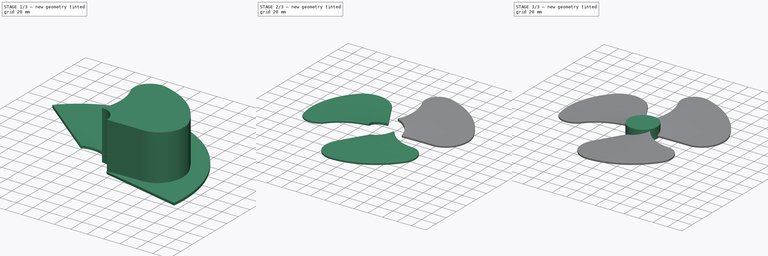
[diagram: build sequence overview — one tinted view per stage of 3, left to right]
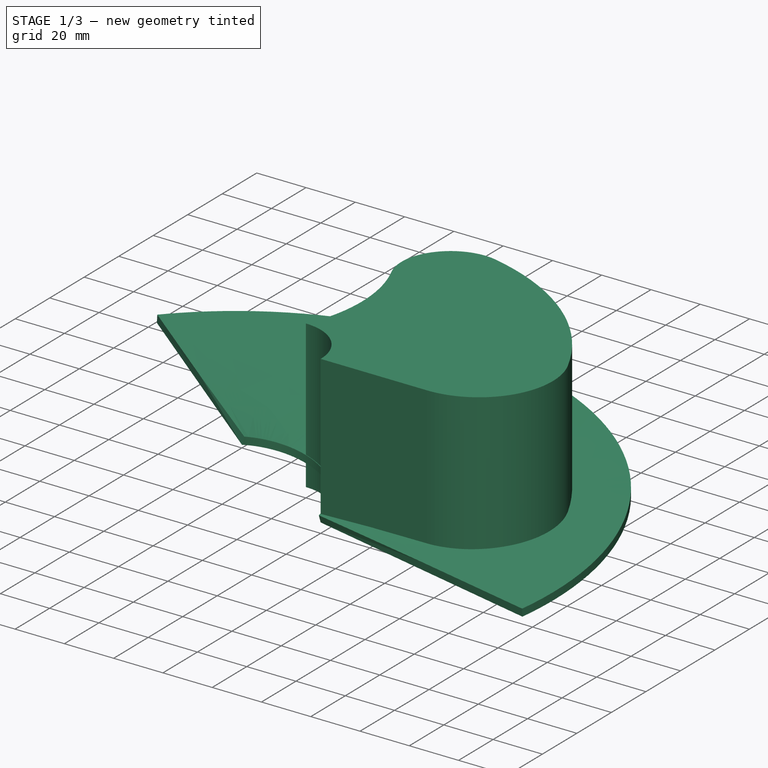
[diagram: stage 1 of 3 — iso view after this stage's code; geometry added in this stage tinted green]
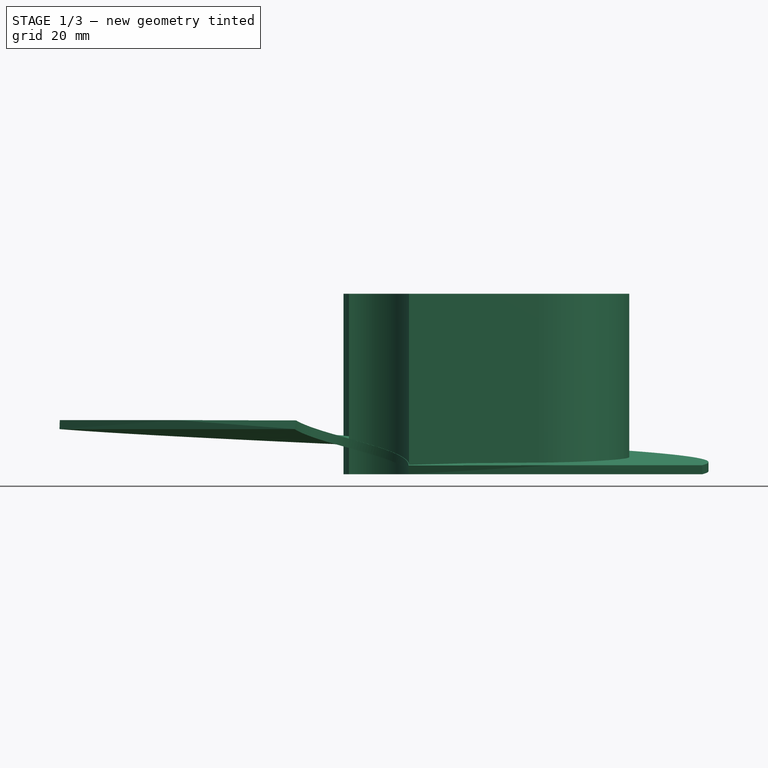
[diagram: stage 1 of 3 — front view after this stage's code; geometry added in this stage tinted green]
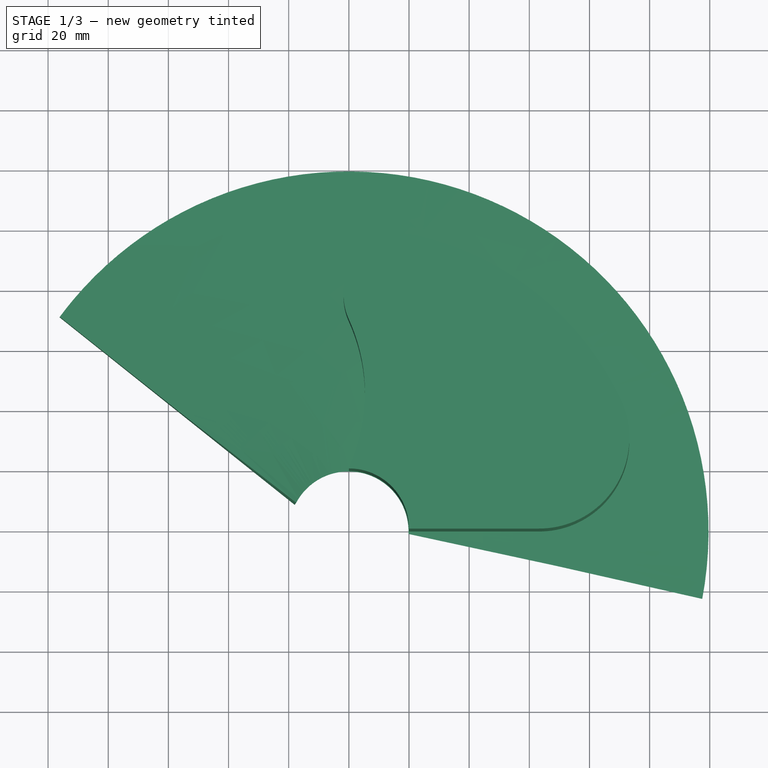
[diagram: stage 1 of 3 — top view after this stage's code; geometry added in this stage tinted green]
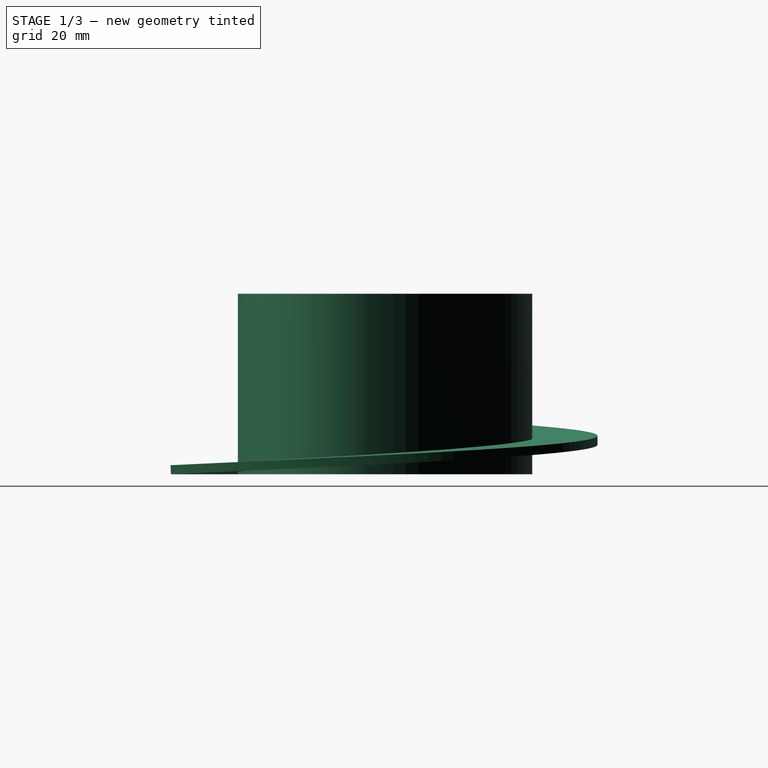
[diagram: stage 1 of 3 — right view after this stage's code; geometry added in this stage tinted green]
FCSTD DOCUMENT  (FreeCAD 0.21RUnknown)
Label: part44a-modellingFanPartWB
License: All rights reserved
LicenseURL: http://en.wikipedia.org/wiki/All_rights_reserved
objects: Sketcher::SketchObject×2, Part::Helix×1, Part::Sweep×1, Part::Offset×1, Part::Extrusion×1, Part::MultiCommon×1, Part::Cylinder×1, Part::Fillet×1, Part::FeaturePython×1, Part::MultiFuse×1
note: 10 computed .brp shape members not serialized (recipe doc carries the construction recipe); baked Part::Feature solids carry a one-line shape summary decoded from their .brp

FEATURE [Sketcher::SketchObject] Sketch
  FullyConstrained = true
  sketch-geometry (6):
    g0: ArcOfCircle CenterX=0 CenterY=0 CenterZ=0 NormalX=0 NormalY=0 NormalZ=1 AngleXU=0 Radius=20 StartAngle=0 EndAngle=1.5708
    g1: LineSegment StartX=20 StartY=0 StartZ=0 EndX=63.2456 EndY=0 EndZ=0
    g2: ArcOfCircle CenterX=0 CenterY=0 CenterZ=0 NormalX=0 NormalY=0 NormalZ=1 AngleXU=0 Radius=100 StartAngle=0.442911 EndAngle=1.34117
    g3: ArcOfCircle CenterX=18.2094 CenterY=77.9 CenterZ=0 NormalX=0 NormalY=0 NormalZ=1 AngleXU=0 Radius=20 StartAngle=1.34117 EndAngle=3.56797
    g4: ArcOfCircle CenterX=63.2456 CenterY=30 CenterZ=0 NormalX=0 NormalY=0 NormalZ=1 AngleXU=0 Radius=30 StartAngle=4.71239 EndAngle=6.7261
    g5: ArcOfCircle CenterX=-54.6283 CenterY=44.8143 CenterZ=0 NormalX=0 NormalY=0 NormalZ=1 AngleXU=0 Radius=60 StartAngle=5.85681 EndAngle=6.70956
  constraints (17):
    c: Coincident(g0,g-1)
    c: PointOnObject(g0,g-2)
    c: PointOnObject(g0,g-1)
    c: Radius(g0) = 20
    c: Coincident(g1,g0)
    c: Coincident(g2,g0)
    c: Radius(g2) = 100
    c: Tangent(g2,g3) = -1.5708
    c: Tangent(g2,g4) = -1.5708
    c: Tangent(g1,g4) = -1.5708
    c: Radius(g4) = 30
    c: PointOnObject(g1,g-1)
    c: Radius(g3) = 20
    c: Coincident(g5,g0)
    c: PointOnObject(g3,g-2)
    c: Tangent(g5,g3) = 1.5708
    c: Radius(g5) = 60
FEATURE [Part::Helix] Helix
  Angle = 0
  AttacherType = Attacher::AttachEngine3D
  Height = 15
  LocalCoord = 0
  Pitch = 35
  Radius = 20
  SegmentLength = 0
  Style = 1
FEATURE [Sketcher::SketchObject] Sketch001
  ExternalGeometry = -> [Helix]
  FullyConstrained = true
  MapMode = 1
  Placement = pos=(20,0,0) rot=(0,0,1;0rad)
  Support = -> [Helix]
  sketch-geometry (2):
    g0: LineSegment StartX=0 StartY=0 StartZ=0 EndX=97.4928 EndY=-22.2521 EndZ=0
    g1: LineSegment StartX=-38.0194 StartY=8.67767 StartZ=0 EndX=0 EndY=0 EndZ=0
  constraints (5):
    c: Coincident(g0,g-1)
    c: Coincident(g1,g-3)
    c: Coincident(g1,g0)
    c: Parallel(g1,g0)
    c: Distance(g0) = 100
FEATURE [Part::Sweep] Sweep  label="Sweep - Frenet set to true!"
  Frenet = true
  Sections = -> [Sketch001]
  Solid = false
  Spine = -> Helix [Edge1]
  Transition = 1
FEATURE [Part::Offset] Offset
  Fill = true
  Intersection = false
  Join = 0
  Mode = 0
  SelfIntersection = false
  Source = -> Sweep
  Value = 3
FEATURE [Part::Extrusion] Extrude
  Base = -> Sketch
  Dir = (0,0,1)
  DirMode = 2
  FaceMakerClass = Part::FaceMakerBullseye
  LengthFwd = 60
  LengthRev = 0
  Solid = true
  Symmetric = false
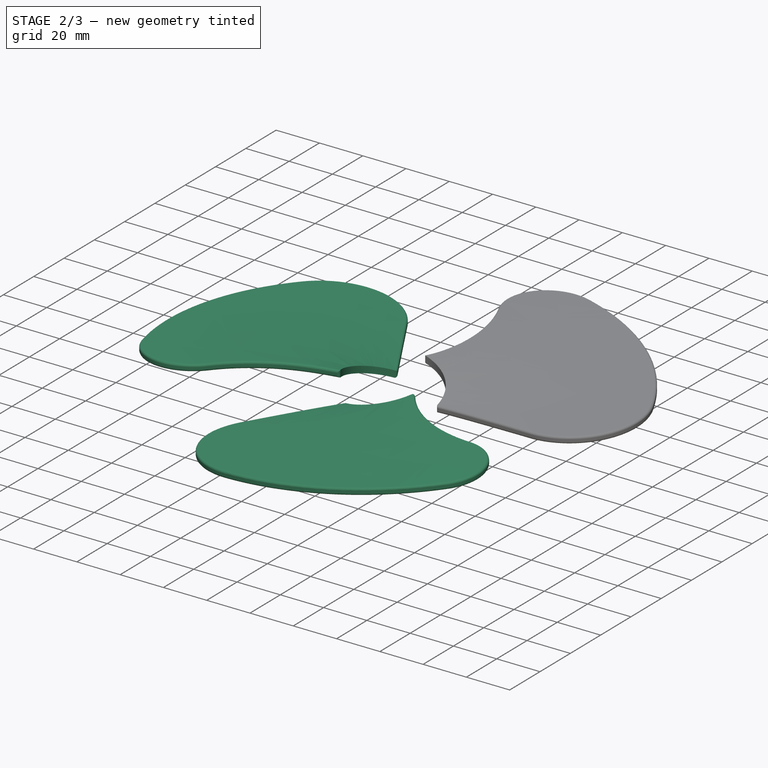
[diagram: stage 2 of 3 — iso view after this stage's code; geometry added in this stage tinted green]
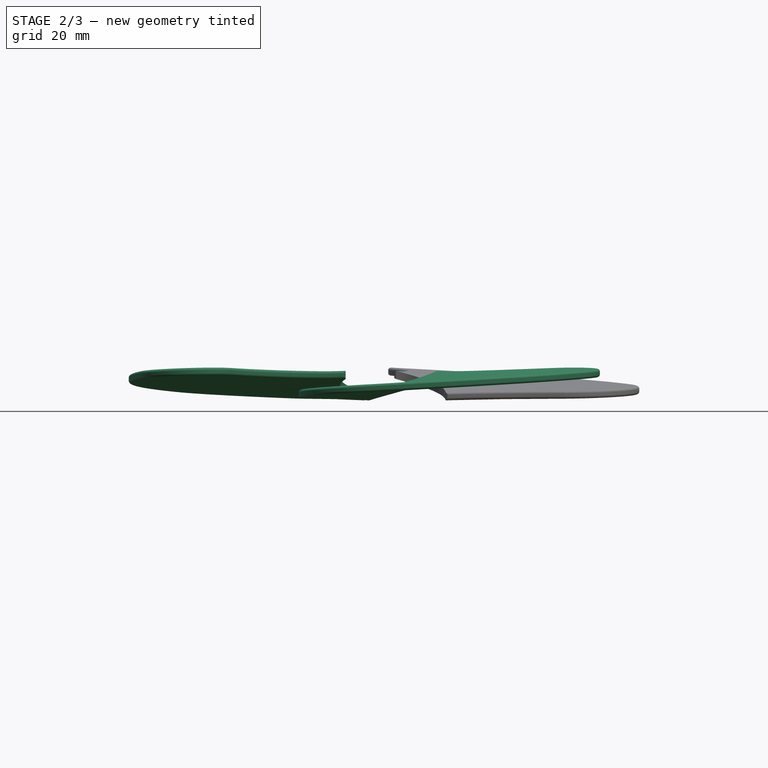
[diagram: stage 2 of 3 — front view after this stage's code; geometry added in this stage tinted green]
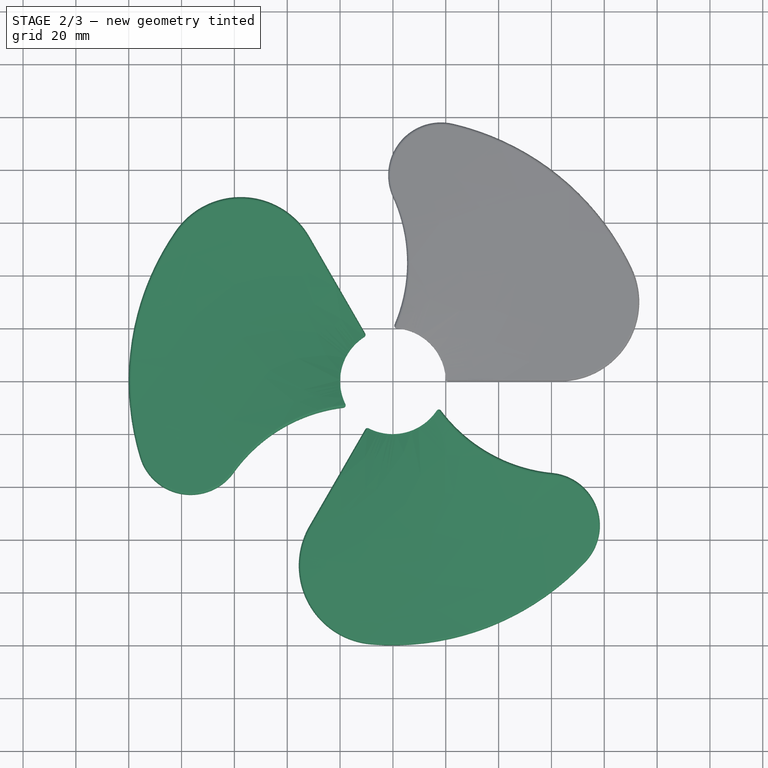
[diagram: stage 2 of 3 — top view after this stage's code; geometry added in this stage tinted green]
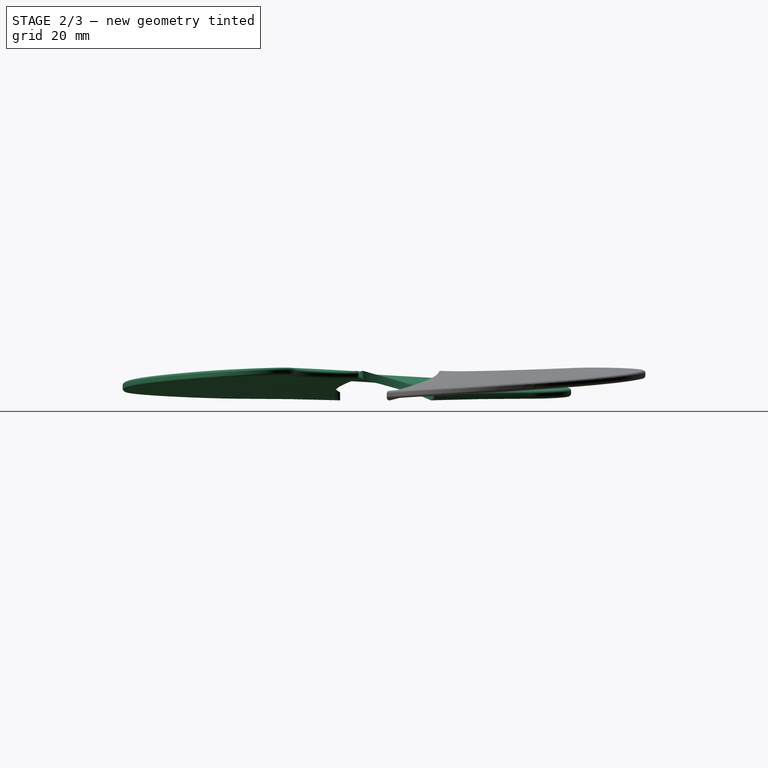
[diagram: stage 2 of 3 — right view after this stage's code; geometry added in this stage tinted green]
FEATURE [Part::MultiCommon] Common
  Shapes = -> [Extrude,Offset]
FEATURE [Part::Fillet] Fillet
  Base = -> Common
  Edges = 16 edges r=1: [Edge1,Edge2,Edge4,Edge5,Edge8,Edge9,Edge10,Edge11,Edge12,Edge16,Edge17,Edge19,Edge20,Edge21,Edge22,Edge23]
FEATURE [Part::FeaturePython] Array  # Draft array (typed FeaturePython)
  AlwaysSyncPlacement = false
  Angle = 360
  ArrayType = 1
  Axis = (0,0,1)
  Base = -> Fillet
  Center = (0,0,0)
  Count = 3
  ExpandArray = false
  Fuse = false
  IntervalAxis = (0,0,0)
  IntervalX = (50,0,0)
  IntervalY = (0,50,0)
  IntervalZ = (0,0,50)
  NumberCircles = 3
  NumberPolar = 3
  NumberX = 2
  NumberY = 2
  NumberZ = 1
  PlacementList = 3 placements: [(0,0,0),(0,0,0),(0,0,0)]
  RadialDistance = 50
  ScaleList = (3) [(1,1,1),(1,1,1),(1,1,1)]
  Symmetry = 1
  TangentialDistance = 25
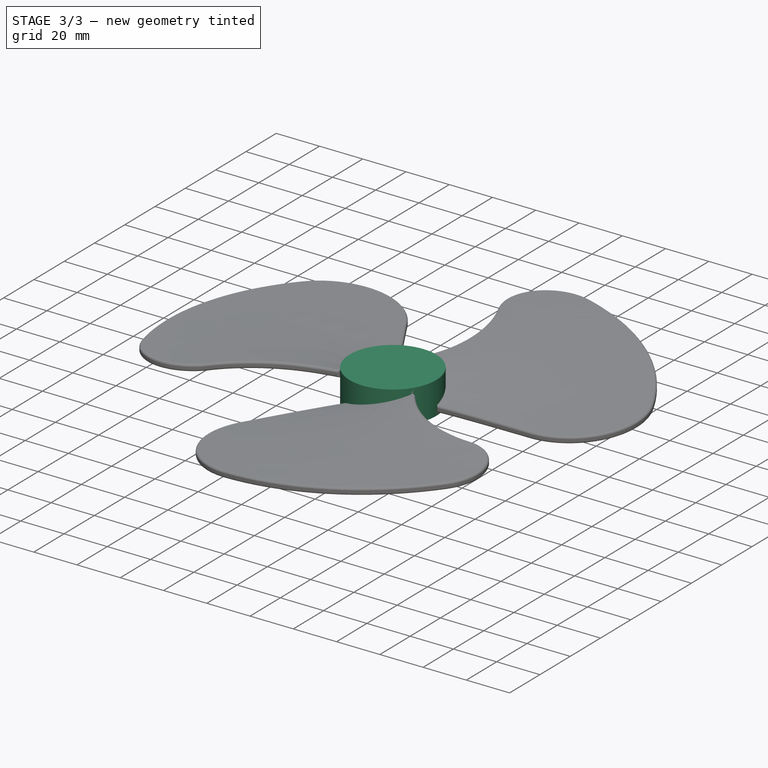
[diagram: stage 3 of 3 — iso view after this stage's code; geometry added in this stage tinted green]
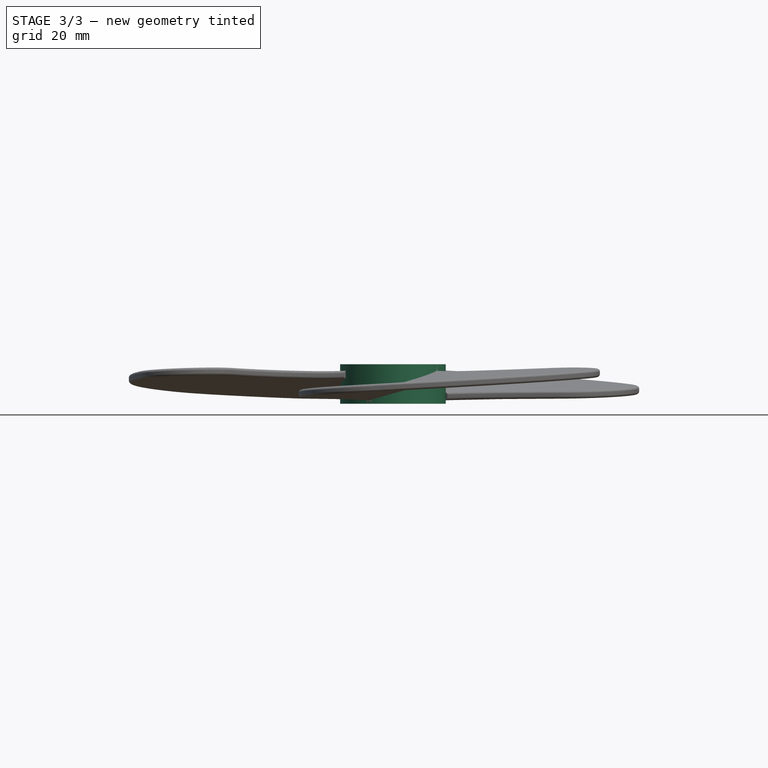
[diagram: stage 3 of 3 — front view after this stage's code; geometry added in this stage tinted green]
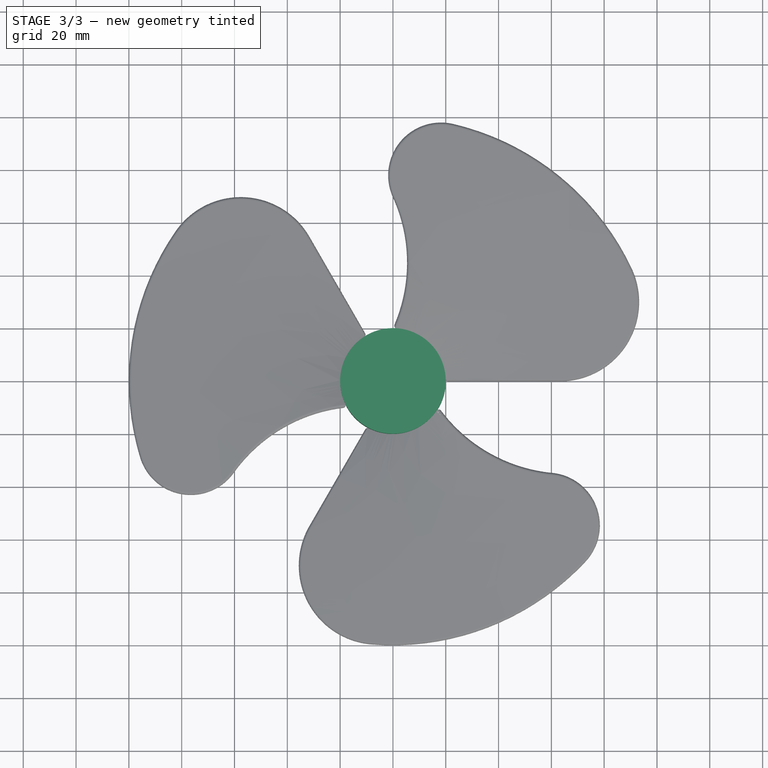
[diagram: stage 3 of 3 — top view after this stage's code; geometry added in this stage tinted green]
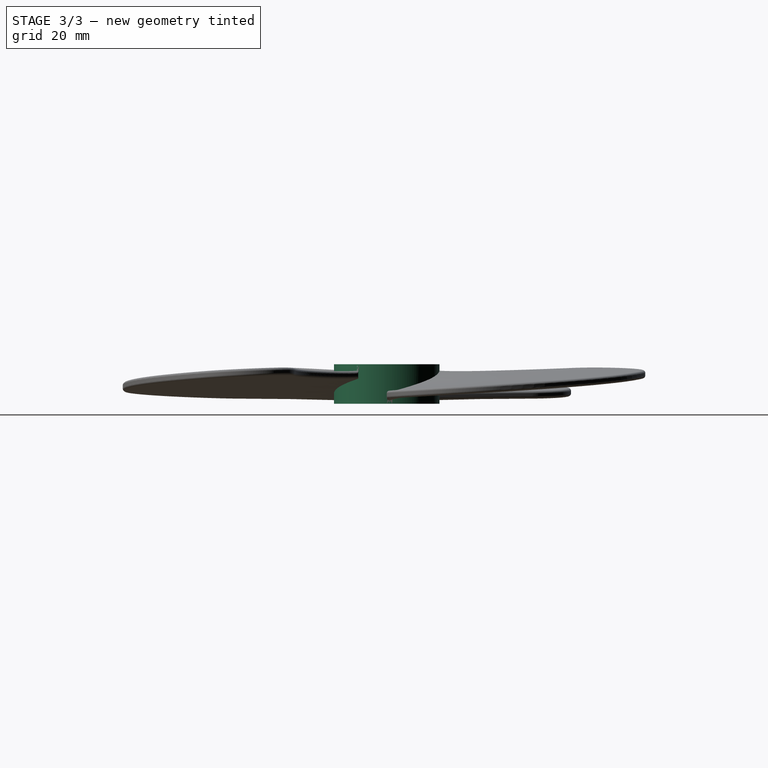
[diagram: stage 3 of 3 — right view after this stage's code; geometry added in this stage tinted green]
FEATURE [Part::Cylinder] Cylinder
  Angle = 360
  AttacherType = Attacher::AttachEngine3D
  FirstAngle = 0
  Height = 15
  Placement = pos=(0,0,-1) rot=(0,0,1;0rad)
  Radius = 20
  SecondAngle = 0
FEATURE [Part::MultiFuse] Fusion  label="Fusion - Frenet set to true, see Sweep along helix"
  Shapes = -> [Array,Cylinder]
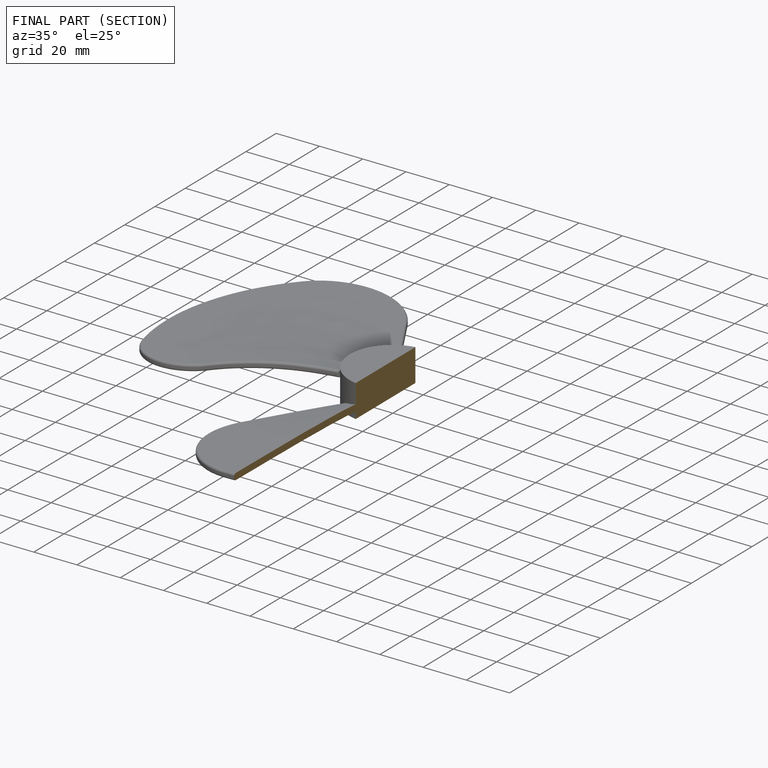
[diagram: finished part — half-section view (interior)]
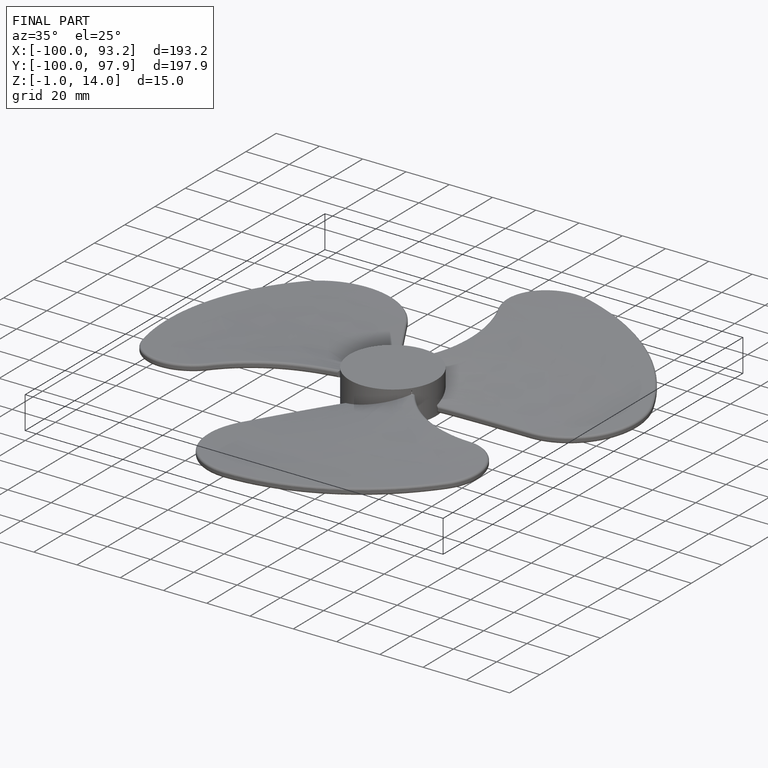
[diagram: finished part — iso view with bounding-box wireframe]
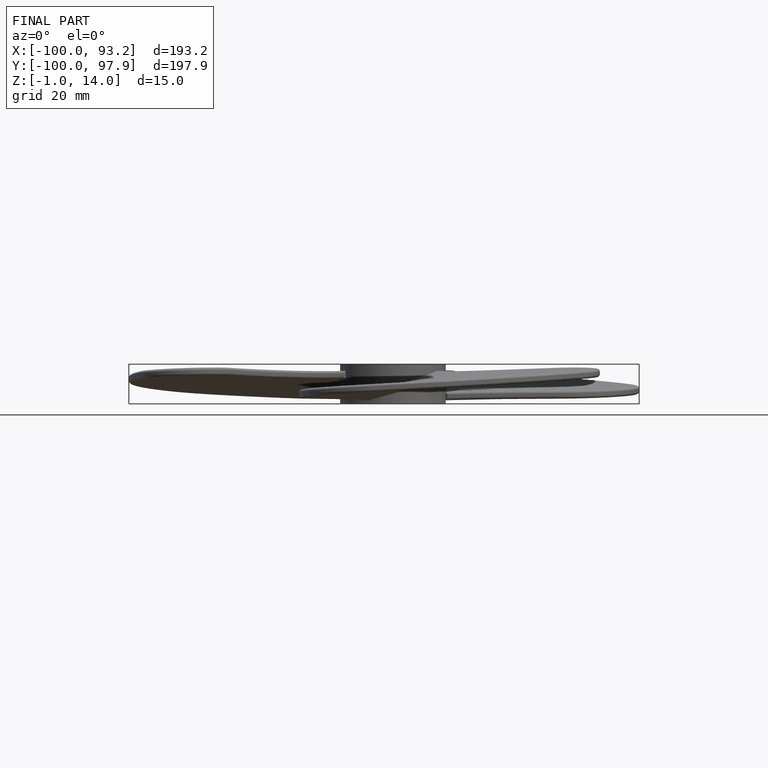
[diagram: finished part — front view with bounding-box wireframe]
